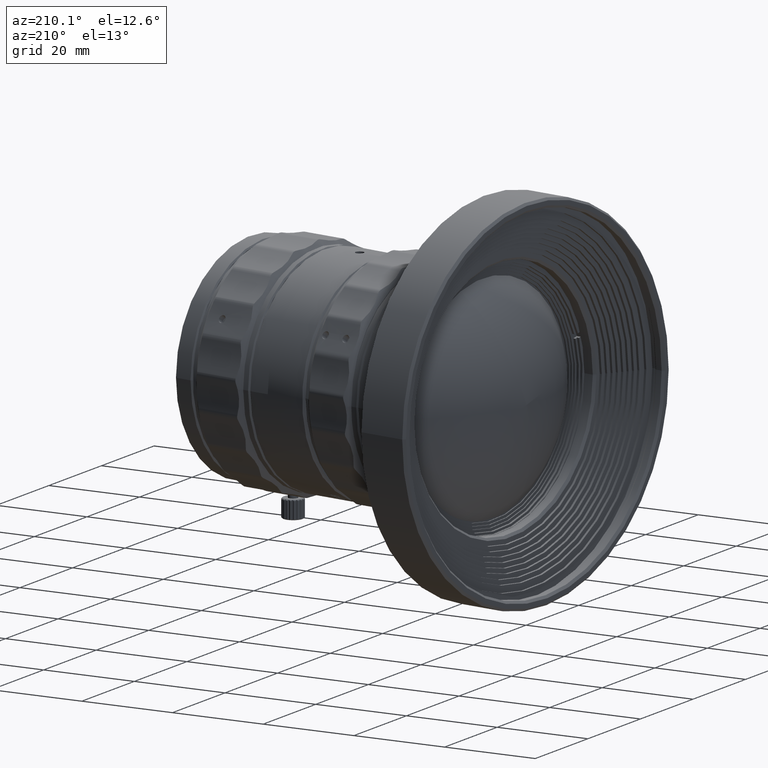
[diagram: clean part render]
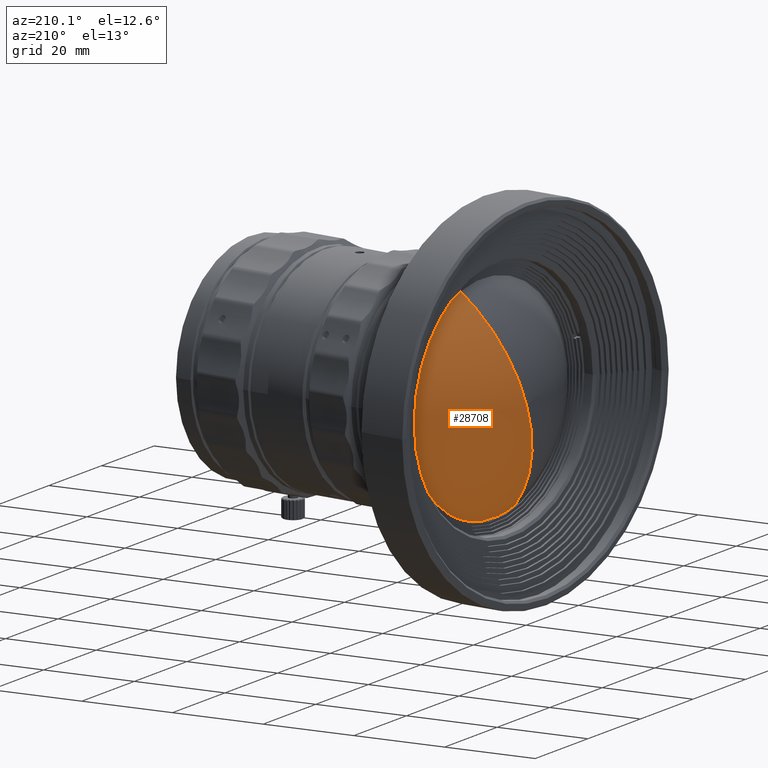
[diagram: same view with one face highlighted and labeled with its STEP entity id]
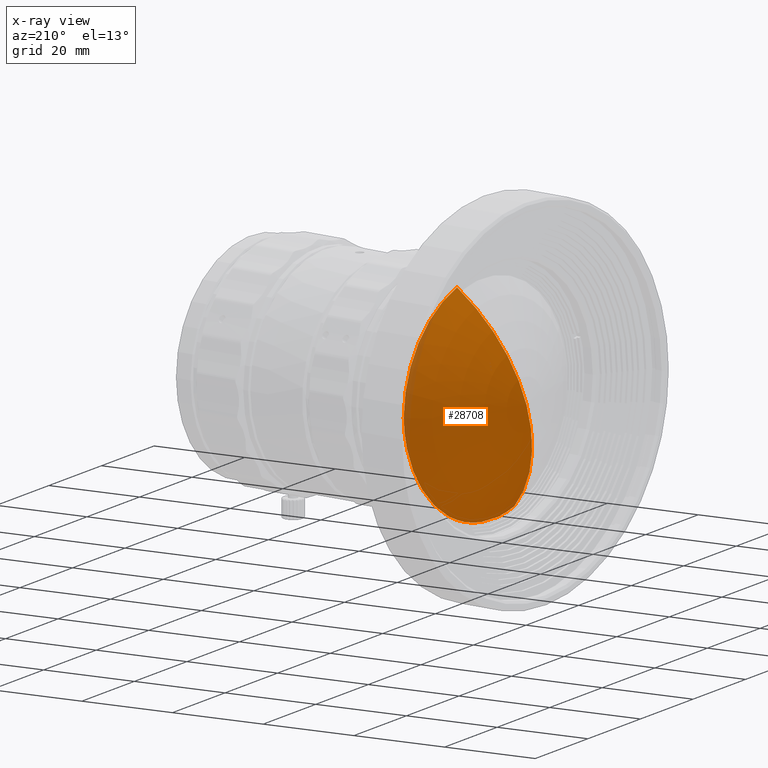
[diagram: x-ray of the same camera — body ghosted, the highlighted face saturated]
A machine part, auxiliary view. The second image highlights one B-rep face of the part: STEP entity #28708.
The next image is the same camera in x-ray: the body ghosted, the highlighted face saturated — about 4% of this face is hidden behind the body in this view.
In plain terms, the highlighted spherical surface has radius 34.4714 mm.
Its self-contained STEP definition (entity closure, byte-faithful):
#133 = VERTEX_POINT ( 'NONE', #56898 ) ;
#3596 = DIRECTION ( 'NONE',  ( 0.9869211278471833326, -0.1612038690876970159, 4.403311781976295933E-17 ) ) ;
#4081 = CARTESIAN_POINT ( 'NONE',  ( 116.2203185735883295, -8.878257897048989378, -33.82984969978606671 ) ) ;
#4372 = CARTESIAN_POINT ( 'NONE',  ( 113.6710126547298927, -23.46960113899353217, -42.46020765109386019 ) ) ;
#5134 = ORIENTED_EDGE ( 'NONE', *, *, #42802, .T. ) ;
#7362 = CARTESIAN_POINT ( 'NONE',  ( 112.8836156146817729, -28.25086394592754857, -42.79175043037194115 ) ) ;
#7635 = DIRECTION ( 'NONE',  ( 0.9869211278471835547, -0.1612038690876969049, 1.065370199391273468E-16 ) ) ;
#8249 = CARTESIAN_POINT ( 'NONE',  ( 116.6373403622992129, -6.704978350566727308, -30.61565476155738352 ) ) ;
#11835 = CARTESIAN_POINT ( 'NONE',  ( 112.6495932879052049, -29.69336983119034912, -42.70701351065891060 ) ) ;
#12430 = CARTESIAN_POINT ( 'NONE',  ( 111.6840477388686992, -35.76302746001440624, -41.35008508961860230 ) ) ;
#13021 = CARTESIAN_POINT ( 'NONE',  ( 113.3568409398351093, -25.36320249747961242, -42.71306552108318044 ) ) ;
#13896 = CARTESIAN_POINT ( 'NONE',  ( 116.3314124944341330, -8.288178661629988397, -33.06696802399794421 ) ) ;
#15999 = CARTESIAN_POINT ( 'NONE',  ( 111.9690612884486001, -33.94049415910524914, -42.01369288131927249 ) ) ;
#17299 = FACE_OUTER_BOUND ( 'NONE', #28126, .T. ) ;
#17502 = CARTESIAN_POINT ( 'NONE',  ( 114.1405136884146572, -20.67495923720347761, -41.78230470553937437 ) ) ;
#17793 = DIRECTION ( 'NONE',  ( -0.9869211278471834436, 0.1612038690876969327, 0.000000000000000000 ) ) ;
#18077 = CARTESIAN_POINT ( 'NONE',  ( 114.2965892465710596, -19.75451747380839507, -41.48386746843112860 ) ) ;
#19584 = CIRCLE ( 'NONE', #52858, 34.47139600000001280 ) ;
#20189 = CIRCLE ( 'NONE', #27822, 24.49999999998999911 ) ;
#21357 = DIRECTION ( 'NONE',  ( -0.05556133997111240008, -0.3401572221517859540, -0.9387257329585649845 ) ) ;
#21481 = SPHERICAL_SURFACE ( 'NONE', #54519, 34.47139599999999859 ) ;
#21672 = CARTESIAN_POINT ( 'NONE',  ( 115.0495585973890087, -15.37398697133154357, -39.53312983508065059 ) ) ;
#22656 = DIRECTION ( 'NONE',  ( -0.05556133997111247641, -0.3401572221517858430, -0.9387257329585650956 ) ) ;
#22850 = CARTESIAN_POINT ( 'NONE',  ( 117.0543465251307538, -4.670102081148145956, -26.24160380212867238 ) ) ;
#23159 = CARTESIAN_POINT ( 'NONE',  ( 111.6840477388686992, -35.76302746001440624, -41.35008508961860230 ) ) ;
#23450 = VERTEX_POINT ( 'NONE', #54514 ) ;
#25551 = CARTESIAN_POINT ( 'NONE',  ( 112.9627788216579063, -27.76522641347845877, -42.80059060328220255 ) ) ;
#26158 = CARTESIAN_POINT ( 'NONE',  ( 115.3982196644714975, -13.40293815552591639, -38.14350097593852951 ) ) ;
#26449 = CARTESIAN_POINT ( 'NONE',  ( 114.0623898589218612, -21.13743373835803041, -41.91681741026785346 ) ) ;
#27320 = CARTESIAN_POINT ( 'NONE',  ( 117.2730702687617281, -3.784093055051884757, -22.43046293908087208 ) ) ;
#27822 = AXIS2_PLACEMENT_3D ( 'NONE', #30000, #7635, #21357 ) ;
#28126 = EDGE_LOOP ( 'NONE', ( #54030, #5134, #28762 ) ) ;
#28708 = ADVANCED_FACE ( 'NONE', ( #17299 ), #21481, .T. ) ;
#28762 = ORIENTED_EDGE ( 'NONE', *, *, #31272, .F. ) ;
#30000 = CARTESIAN_POINT ( 'NONE',  ( 113.4507555961811960, -27.64867423821700143, -18.76329369249004841 ) ) ;
#30024 = CARTESIAN_POINT ( 'NONE',  ( 112.7271270664517999, -29.21430284879306782, -42.74491769550944298 ) ) ;
#30625 = CARTESIAN_POINT ( 'NONE',  ( 112.2654085606038166, -32.07569876412618015, -42.44645347440102512 ) ) ;
#31215 = CARTESIAN_POINT ( 'NONE',  ( 115.8628919098654535, -10.81485857029636399, -35.96346633151454597 ) ) ;
#31272 = EDGE_CURVE ( 'NONE', #23450, #133, #20189, .T. ) ;
#31506 = CARTESIAN_POINT ( 'NONE',  ( 137.3828734434829926, -31.55775053984945089, -18.76329369249004841 ) ) ;
#32079 = CARTESIAN_POINT ( 'NONE',  ( 117.2251599176639161, -3.962938890894374122, -23.39262995296143544 ) ) ;
#35291 = B_SPLINE_CURVE_WITH_KNOTS ( 'NONE', 3,
 ( #12430, #15999, #30625, #11835, #30024, #7362, #25551, #43697, #13021, #4372, #40127, #26449, #17502, #18077, #40999, #54366, #21672, #26158, #35661, #49635, #35360, #31215, #45455, #4081, #13896, #35953, #45165, #8249, #58271, #40710, #22850, #32079, #27320, #57974, #44579, #58837 ),
 .UNSPECIFIED., .F., .F.,
 ( 4, 2, 2, 2, 2, 2, 2, 2, 2, 2, 2, 2, 2, 2, 2, 2, 2, 4 ),
 ( 0.0002335597690098652722, 0.006040609240046193595, 0.007492371607805279471, 0.008944133975564365346, 0.01184765871108252842, 0.01475118344660069497, 0.01620294581435977044, 0.01765470818211884590, 0.02346175765315513043, 0.02491352002091420242, 0.02636528238867328483, 0.02926880712419143923, 0.03217233185970959364, 0.03362409422746867604, 0.03507585659522775151, 0.04088290606626410195, 0.04378643080178226676, 0.04668995553730042464 ),
 .UNSPECIFIED. ) ;
#35360 = CARTESIAN_POINT ( 'NONE',  ( 115.6689516658541805, -11.88803627904881566, -36.93254178907054808 ) ) ;
#35661 = CARTESIAN_POINT ( 'NONE',  ( 115.4672598200916269, -13.01458453335668963, -37.85188196104621738 ) ) ;
#35953 = CARTESIAN_POINT ( 'NONE',  ( 116.4887453161542794, -7.467233074286561134, -31.86284541758704236 ) ) ;
#39243 = EDGE_CURVE ( 'NONE', #50537, #23450, #35291, .T. ) ;
#40127 = CARTESIAN_POINT ( 'NONE',  ( 113.8277654109928392, -22.53146311399411417, -42.27724835691912375 ) ) ;
#40710 = CARTESIAN_POINT ( 'NONE',  ( 116.9075613061620942, -5.354567125838552322, -28.04781737706644051 ) ) ;
#40999 = CARTESIAN_POINT ( 'NONE',  ( 114.3742137951014968, -19.29848982059076334, -41.32048271486321767 ) ) ;
#42802 = EDGE_CURVE ( 'NONE', #50537, #133, #19584, .T. ) ;
#43697 = CARTESIAN_POINT ( 'NONE',  ( 113.1994220188556710, -26.31866493893728176, -42.78296992167467749 ) ) ;
#44579 = CARTESIAN_POINT ( 'NONE',  ( 117.3798715619984279, -3.476716328001816070, -19.52243204904749874 ) ) ;
#45165 = CARTESIAN_POINT ( 'NONE',  ( 116.5397513130964313, -7.203723916362196888, -31.45035553937507800 ) ) ;
#45455 = CARTESIAN_POINT ( 'NONE',  ( 115.9860585740645860, -10.14159577171128390, -35.27810079000465748 ) ) ;
#49635 = CARTESIAN_POINT ( 'NONE',  ( 115.6027692507829983, -12.25633669977825768, -37.24571272382968345 ) ) ;
#50537 = VERTEX_POINT ( 'NONE', #23159 ) ;
#52858 = AXIS2_PLACEMENT_3D ( 'NONE', #31506, #54661, #17793 ) ;
#54030 = ORIENTED_EDGE ( 'NONE', *, *, #39243, .F. ) ;
#54366 = CARTESIAN_POINT ( 'NONE',  ( 114.7569951930815364, -17.05842288311490051, -40.44085579459635937 ) ) ;
#54514 = CARTESIAN_POINT ( 'NONE',  ( 117.4000877775985288, -3.470102143231047709, -18.54097237570405454 ) ) ;
#54519 = AXIS2_PLACEMENT_3D ( 'NONE', #57778, #3596, #22656 ) ;
#54661 = DIRECTION ( 'NONE',  ( 0.1513262201651049688, 0.9264482591106408815, -0.3446650523064459515 ) ) ;
#56898 = CARTESIAN_POINT ( 'NONE',  ( 114.8120084254729960, -19.31482229550164931, 4.235486764985449959 ) ) ;
#57778 = CARTESIAN_POINT ( 'NONE',  ( 137.3828734434829926, -31.55775053984945089, -18.76329369249004841 ) ) ;
#57974 = CARTESIAN_POINT ( 'NONE',  ( 117.3503530038141918, -3.541286481119005014, -20.49656533079180321 ) ) ;
#58271 = CARTESIAN_POINT ( 'NONE',  ( 116.6840668008831585, -6.468980399903017542, -30.19245869924429826 ) ) ;
#58837 = CARTESIAN_POINT ( 'NONE',  ( 117.4000877775985288, -3.470102143231047709, -18.54097237570405454 ) ) ;